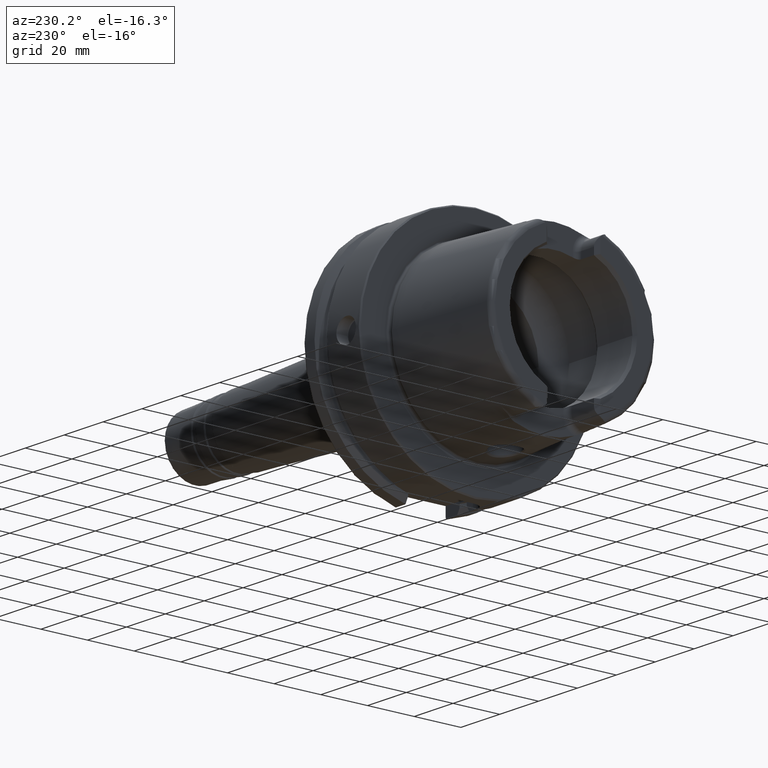
[diagram: clean part render]
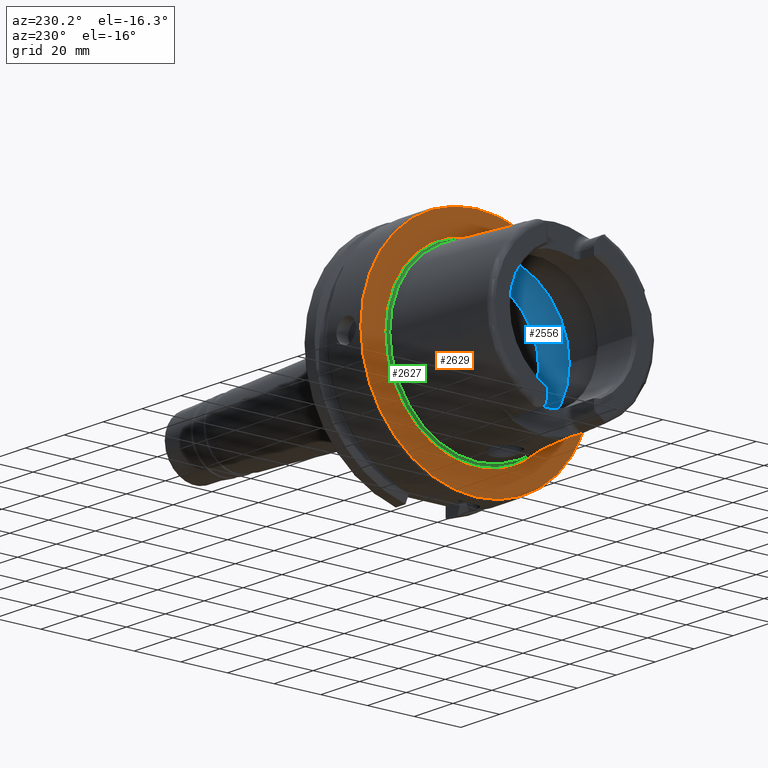
[diagram: same view with three faces highlighted in distinct colors, each labeled with its STEP entity id]
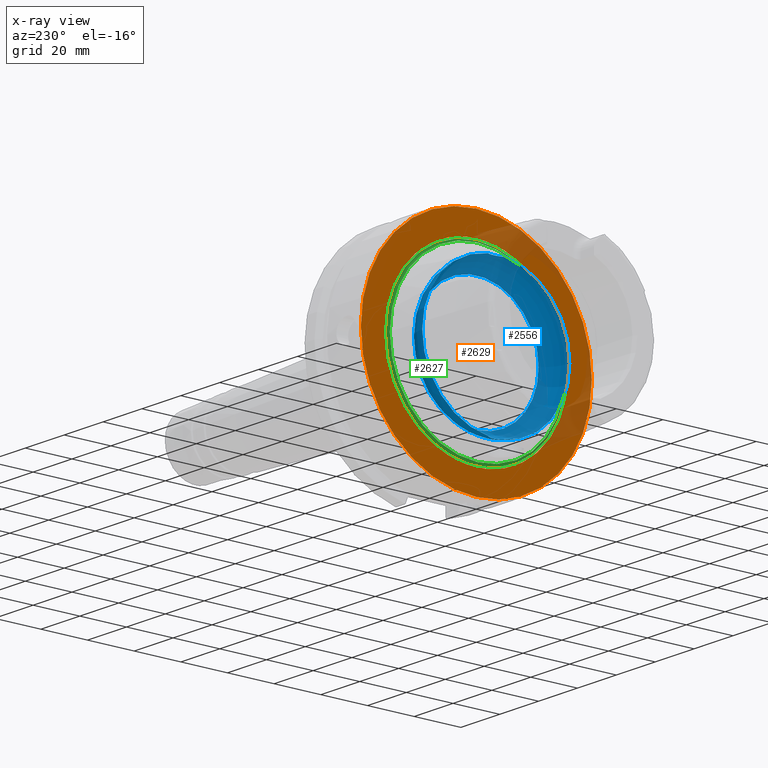
[diagram: x-ray of the same camera — body ghosted, the three highlighted faces saturated]
A machine part, auxiliary view with three faces highlighted in distinct colors.
The next image is the same camera in x-ray (body ghosted, the three faces saturated) — at least one of them is partly hidden behind the body in this view.
Their STEP definitions:

[orange] entity #2629 — the highlighted planar face has unit normal (-1, 0, 0).
#127=FACE_BOUND('',#697,.T.);
#163=PLANE('',#3005);
#552=FACE_OUTER_BOUND('',#696,.T.);
#696=EDGE_LOOP('',(#2419,#2420));
#697=EDGE_LOOP('',(#2421,#2422));
#922=CIRCLE('',#3003,39.2747800249997);
#923=CIRCLE('',#3004,39.2747800249997);
#924=CIRCLE('',#3006,49.5);
#925=CIRCLE('',#3007,49.5);
#1217=VERTEX_POINT('',#5559);
#1218=VERTEX_POINT('',#5561);
#1219=VERTEX_POINT('',#5565);
#1220=VERTEX_POINT('',#5566);
#1624=EDGE_CURVE('',#1218,#1217,#922,.T.);
#1625=EDGE_CURVE('',#1217,#1218,#923,.T.);
#1626=EDGE_CURVE('',#1219,#1220,#924,.T.);
#1627=EDGE_CURVE('',#1220,#1219,#925,.T.);
#2419=ORIENTED_EDGE('',*,*,#1626,.F.);
#2420=ORIENTED_EDGE('',*,*,#1627,.F.);
#2421=ORIENTED_EDGE('',*,*,#1624,.T.);
#2422=ORIENTED_EDGE('',*,*,#1625,.T.);
#2629=ADVANCED_FACE('',(#552,#127),#163,.T.);
#3003=AXIS2_PLACEMENT_3D('',#5562,#3825,#3826);
#3004=AXIS2_PLACEMENT_3D('',#5563,#3827,#3828);
#3005=AXIS2_PLACEMENT_3D('',#5564,#3829,#3830);
#3006=AXIS2_PLACEMENT_3D('',#5567,#3831,#3832);
#3007=AXIS2_PLACEMENT_3D('',#5568,#3833,#3834);
#3825=DIRECTION('center_axis',(1.,0.,0.));
#3826=DIRECTION('ref_axis',(0.,0.,-1.));
#3827=DIRECTION('center_axis',(1.,0.,0.));
#3828=DIRECTION('ref_axis',(0.,0.,-1.));
#3829=DIRECTION('center_axis',(-1.,0.,0.));
#3830=DIRECTION('ref_axis',(0.,0.,1.));
#3831=DIRECTION('center_axis',(1.,0.,0.));
#3832=DIRECTION('ref_axis',(0.,0.,-1.));
#3833=DIRECTION('center_axis',(1.,0.,0.));
#3834=DIRECTION('ref_axis',(0.,0.,-1.));
#5559=CARTESIAN_POINT('',(-1.11889664200504E-15,-39.2747800249997,-4.80977336448322E-15));
#5561=CARTESIAN_POINT('',(0.,39.2747800249997,0.));
#5562=CARTESIAN_POINT('Origin',(0.,0.,0.));
#5563=CARTESIAN_POINT('Origin',(0.,0.,0.));
#5564=CARTESIAN_POINT('Origin',(0.,49.5,0.));
#5565=CARTESIAN_POINT('',(0.,49.5,0.));
#5566=CARTESIAN_POINT('',(1.2490009027033E-15,-49.5,-6.0620016557794E-15));
#5567=CARTESIAN_POINT('Origin',(0.,0.,0.));
#5568=CARTESIAN_POINT('Origin',(0.,0.,0.));

[blue] entity #2556 — the highlighted toroidal blend (fillet) surface has major radius 19.5 mm and minor (blend) radius 12 mm.
#49=B_SPLINE_CURVE_WITH_KNOTS('',3,(#4620,#4621,#4622,#4623,#4624,#4625,
#4626,#4627,#4628,#4629),.UNSPECIFIED.,.F.,.F.,(4,2,2,2,4),(-0.704306975532235,
-0.563368317577754,-0.446049375641081,-0.386534165165624,-0.352317223799877),
 .UNSPECIFIED.);
#51=B_SPLINE_CURVE_WITH_KNOTS('',3,(#4662,#4663,#4664,#4665,#4666,#4667,
#4668,#4669,#4670,#4671),.UNSPECIFIED.,.F.,.F.,(4,2,2,2,4),(-0.352317223799877,
-0.339935606805379,-0.289031750490702,-0.208814277120691,0.),
 .UNSPECIFIED.);
#54=B_SPLINE_CURVE_WITH_KNOTS('',3,(#4812,#4813,#4814,#4815,#4816,#4817,
#4818,#4819,#4820,#4821),.UNSPECIFIED.,.F.,.F.,(4,2,2,2,4),(-0.704306975532881,
-0.563368317578124,-0.446049375641235,-0.386534165165663,-0.352317223799864),
 .UNSPECIFIED.);
#56=B_SPLINE_CURVE_WITH_KNOTS('',3,(#4854,#4855,#4856,#4857,#4858,#4859,
#4860,#4861,#4862,#4863),.UNSPECIFIED.,.F.,.F.,(4,2,2,2,4),(-0.352317223799864,
-0.339935606805357,-0.289031750490679,-0.208814277120681,0.),
 .UNSPECIFIED.);
#479=FACE_OUTER_BOUND('',#619,.T.);
#619=EDGE_LOOP('',(#1996,#1997,#1998,#1999,#2000,#2001,#2002,#2003,#2004,
#2005,#2006,#2007));
#825=CIRCLE('',#2833,31.5);
#829=CIRCLE('',#2837,31.5);
#830=CIRCLE('',#2838,31.5);
#831=CIRCLE('',#2840,26.5);
#832=CIRCLE('',#2841,26.5);
#833=CIRCLE('',#2842,26.5);
#834=CIRCLE('',#2843,12.);
#1086=VERTEX_POINT('',#4617);
#1087=VERTEX_POINT('',#4619);
#1088=VERTEX_POINT('',#4630);
#1091=VERTEX_POINT('',#4810);
#1092=VERTEX_POINT('',#4811);
#1093=VERTEX_POINT('',#4822);
#1095=VERTEX_POINT('',#4868);
#1099=VERTEX_POINT('',#4880);
#1100=VERTEX_POINT('',#4881);
#1101=VERTEX_POINT('',#4883);
#1418=EDGE_CURVE('',#1087,#1086,#49,.T.);
#1420=EDGE_CURVE('',#1086,#1088,#51,.T.);
#1424=EDGE_CURVE('',#1091,#1092,#54,.T.);
#1426=EDGE_CURVE('',#1092,#1093,#56,.T.);
#1429=EDGE_CURVE('',#1095,#1091,#825,.T.);
#1434=EDGE_CURVE('',#1088,#1095,#829,.T.);
#1435=EDGE_CURVE('',#1093,#1087,#830,.T.);
#1436=EDGE_CURVE('',#1099,#1100,#831,.T.);
#1437=EDGE_CURVE('',#1101,#1099,#832,.T.);
#1438=EDGE_CURVE('',#1100,#1101,#833,.T.);
#1439=EDGE_CURVE('',#1100,#1086,#834,.T.);
#1996=ORIENTED_EDGE('',*,*,#1436,.F.);
#1997=ORIENTED_EDGE('',*,*,#1437,.F.);
#1998=ORIENTED_EDGE('',*,*,#1438,.F.);
#1999=ORIENTED_EDGE('',*,*,#1439,.T.);
#2000=ORIENTED_EDGE('',*,*,#1420,.T.);
#2001=ORIENTED_EDGE('',*,*,#1434,.T.);
#2002=ORIENTED_EDGE('',*,*,#1429,.T.);
#2003=ORIENTED_EDGE('',*,*,#1424,.T.);
#2004=ORIENTED_EDGE('',*,*,#1426,.T.);
#2005=ORIENTED_EDGE('',*,*,#1435,.T.);
#2006=ORIENTED_EDGE('',*,*,#1418,.T.);
#2007=ORIENTED_EDGE('',*,*,#1439,.F.);
#2483=TOROIDAL_SURFACE('',#2839,19.5,12.);
#2556=ADVANCED_FACE('',(#479),#2483,.F.);
#2833=AXIS2_PLACEMENT_3D('',#4869,#3427,#3428);
#2837=AXIS2_PLACEMENT_3D('',#4877,#3436,#3437);
#2838=AXIS2_PLACEMENT_3D('',#4878,#3438,#3439);
#2839=AXIS2_PLACEMENT_3D('',#4879,#3440,#3441);
#2840=AXIS2_PLACEMENT_3D('',#4882,#3442,#3443);
#2841=AXIS2_PLACEMENT_3D('',#4884,#3444,#3445);
#2842=AXIS2_PLACEMENT_3D('',#4885,#3446,#3447);
#2843=AXIS2_PLACEMENT_3D('',#4886,#3448,#3449);
#3427=DIRECTION('center_axis',(-1.,0.,0.));
#3428=DIRECTION('ref_axis',(0.,0.,1.));
#3436=DIRECTION('center_axis',(-1.,0.,0.));
#3437=DIRECTION('ref_axis',(0.,0.,1.));
#3438=DIRECTION('center_axis',(-1.,0.,0.));
#3439=DIRECTION('ref_axis',(0.,0.,1.));
#3440=DIRECTION('center_axis',(-1.,0.,0.));
#3441=DIRECTION('ref_axis',(0.,0.,1.));
#3442=DIRECTION('center_axis',(-1.,0.,0.));
#3443=DIRECTION('ref_axis',(0.,0.,1.));
#3444=DIRECTION('center_axis',(-1.,0.,0.));
#3445=DIRECTION('ref_axis',(0.,0.,1.));
#3446=DIRECTION('center_axis',(-1.,0.,0.));
#3447=DIRECTION('ref_axis',(0.,0.,1.));
#3448=DIRECTION('center_axis',(0.,1.,-1.22464679914735E-16));
#3449=DIRECTION('ref_axis',(0.,-1.22464679914735E-16,-1.));
#4617=CARTESIAN_POINT('',(-9.,7.31685969699336E-16,-31.4582607431014));
#4619=CARTESIAN_POINT('',(-10.,3.31662479035542,-31.3249102153542));
#4620=CARTESIAN_POINT('Ctrl Pts',(-10.,3.31662479035541,-31.3249102153542));
#4621=CARTESIAN_POINT('Ctrl Pts',(-9.74127936765642,2.9265887617158,-31.3662065240371));
#4622=CARTESIAN_POINT('Ctrl Pts',(-9.52862762836098,2.50688318043554,-31.3949925235713));
#4623=CARTESIAN_POINT('Ctrl Pts',(-9.23240476385999,1.69927856892452,-31.4324255053116));
#4624=CARTESIAN_POINT('Ctrl Pts',(-9.13392344910017,1.31988974241601,-31.4435429781858));
#4625=CARTESIAN_POINT('Ctrl Pts',(-9.04220079429722,0.737558982965052,-31.4537190708018));
#4626=CARTESIAN_POINT('Ctrl Pts',(-9.02106779489129,0.540134132990375,-31.4559959808551));
#4627=CARTESIAN_POINT('Ctrl Pts',(-9.00325309475839,0.228126507331767,-31.4579131546092));
#4628=CARTESIAN_POINT('Ctrl Pts',(-9.,0.114070256385601,-31.4582607431014));
#4629=CARTESIAN_POINT('Ctrl Pts',(-9.,6.93889390390723E-16,-31.4582607431014));
#4630=CARTESIAN_POINT('',(-10.,-3.31662479035542,-31.3249102153542));
#4662=CARTESIAN_POINT('Ctrl Pts',(-9.,7.01335490450834E-16,-31.4582607431014));
#4663=CARTESIAN_POINT('Ctrl Pts',(-9.,-0.0412770448981316,-31.4582607431014));
#4664=CARTESIAN_POINT('Ctrl Pts',(-9.0004259501075,-0.0825559236689198,
-31.4582151361457));
#4665=CARTESIAN_POINT('Ctrl Pts',(-9.00478075477959,-0.293516919658797,
-31.4577484235034));
#4666=CARTESIAN_POINT('Ctrl Pts',(-9.01548241237086,-0.462981091842713,
-31.4566045938877));
#4667=CARTESIAN_POINT('Ctrl Pts',(-9.06151123201634,-0.897706518793593,
-31.4515940123075));
#4668=CARTESIAN_POINT('Ctrl Pts',(-9.10742242341762,-1.16146830462694,-31.4465573898449));
#4669=CARTESIAN_POINT('Ctrl Pts',(-9.33560100291262,-2.09736419662528,-31.4200720324784));
#4670=CARTESIAN_POINT('Ctrl Pts',(-9.61673416003176,-2.73882979665765,-31.3860861033828));
#4671=CARTESIAN_POINT('Ctrl Pts',(-10.,-3.31662479035541,-31.3249102153542));
#4810=CARTESIAN_POINT('',(-10.,-3.31662479035542,31.3249102153542));
#4811=CARTESIAN_POINT('',(-8.99999999999999,7.75054056598756E-16,31.4582607431014));
#4812=CARTESIAN_POINT('Ctrl Pts',(-9.99999999999999,-3.31662479035541,31.3249102153542));
#4813=CARTESIAN_POINT('Ctrl Pts',(-9.74127936765643,-2.92658876171583,31.3662065240371));
#4814=CARTESIAN_POINT('Ctrl Pts',(-9.52862762836099,-2.50688318043561,31.3949925235713));
#4815=CARTESIAN_POINT('Ctrl Pts',(-9.23240476385996,-1.69927856892447,31.4324255053116));
#4816=CARTESIAN_POINT('Ctrl Pts',(-9.13392344910015,-1.31988974241592,31.4435429781858));
#4817=CARTESIAN_POINT('Ctrl Pts',(-9.04220079429722,-0.737558982965067,
31.4537190708018));
#4818=CARTESIAN_POINT('Ctrl Pts',(-9.02106779489129,-0.540134132990415,
31.4559959808551));
#4819=CARTESIAN_POINT('Ctrl Pts',(-9.00325309475839,-0.228126507331796,
31.4579131546092));
#4820=CARTESIAN_POINT('Ctrl Pts',(-8.99999999999999,-0.114070256385655,
31.4582607431014));
#4821=CARTESIAN_POINT('Ctrl Pts',(-8.99999999999999,7.97972798949331E-16,
31.4582607431014));
#4822=CARTESIAN_POINT('',(-10.,3.31662479035542,31.3249102153542));
#4854=CARTESIAN_POINT('Ctrl Pts',(-8.99999999999999,8.16547887892294E-16,
31.4582607431014));
#4855=CARTESIAN_POINT('Ctrl Pts',(-8.99999999999999,0.0412770448981195,
31.4582607431014));
#4856=CARTESIAN_POINT('Ctrl Pts',(-9.00042595010749,0.0825559236689046,
31.4582151361457));
#4857=CARTESIAN_POINT('Ctrl Pts',(-9.00478075477959,0.293516919658727,31.4577484235034));
#4858=CARTESIAN_POINT('Ctrl Pts',(-9.01548241237085,0.462981091842669,31.4566045938877));
#4859=CARTESIAN_POINT('Ctrl Pts',(-9.06151123201633,0.897706518793561,31.4515940123075));
#4860=CARTESIAN_POINT('Ctrl Pts',(-9.1074224234176,1.16146830462691,31.4465573898449));
#4861=CARTESIAN_POINT('Ctrl Pts',(-9.33560100291262,2.09736419662534,31.4200720324784));
#4862=CARTESIAN_POINT('Ctrl Pts',(-9.61673416003176,2.73882979665767,31.3860861033828));
#4863=CARTESIAN_POINT('Ctrl Pts',(-9.99999999999999,3.3166247903554,31.3249102153542));
#4868=CARTESIAN_POINT('',(-10.,-31.5,3.85763741731416E-15));
#4869=CARTESIAN_POINT('Origin',(-10.,0.,0.));
#4877=CARTESIAN_POINT('Origin',(-10.,0.,0.));
#4878=CARTESIAN_POINT('Origin',(-10.,0.,0.));
#4879=CARTESIAN_POINT('Origin',(-10.,0.,0.));
#4880=CARTESIAN_POINT('',(-0.253205655191035,26.5,0.));
#4881=CARTESIAN_POINT('',(-0.253205655191033,-3.24531401774049E-15,-26.5));
#4882=CARTESIAN_POINT('Origin',(-0.253205655191033,0.,0.));
#4883=CARTESIAN_POINT('',(-0.253205655191033,-26.5,3.24531401774049E-15));
#4884=CARTESIAN_POINT('Origin',(-0.253205655191033,0.,0.));
#4885=CARTESIAN_POINT('Origin',(-0.253205655191033,0.,0.));
#4886=CARTESIAN_POINT('Origin',(-10.,-2.38806125833734E-15,-19.5));

[green] entity #2627 — the highlighted toroidal blend (fillet) surface has major radius 38.5073 mm and minor (blend) radius 0.8 mm.
#550=FACE_OUTER_BOUND('',#694,.T.);
#694=EDGE_LOOP('',(#2404,#2405,#2406,#2407,#2408,#2409,#2410,#2411));
#915=CIRCLE('',#2995,37.7073016032064);
#916=CIRCLE('',#2996,0.8);
#917=CIRCLE('',#2997,38.6186400839745);
#918=CIRCLE('',#2998,38.6186400839745);
#919=CIRCLE('',#2999,38.6186400839745);
#920=CIRCLE('',#3000,37.7073016032064);
#921=CIRCLE('',#3001,37.7073016032064);
#1211=VERTEX_POINT('',#5545);
#1212=VERTEX_POINT('',#5546);
#1213=VERTEX_POINT('',#5548);
#1214=VERTEX_POINT('',#5550);
#1215=VERTEX_POINT('',#5552);
#1216=VERTEX_POINT('',#5555);
#1616=EDGE_CURVE('',#1211,#1212,#915,.T.);
#1617=EDGE_CURVE('',#1212,#1213,#916,.T.);
#1618=EDGE_CURVE('',#1214,#1213,#917,.T.);
#1619=EDGE_CURVE('',#1215,#1214,#918,.T.);
#1620=EDGE_CURVE('',#1213,#1215,#919,.T.);
#1621=EDGE_CURVE('',#1212,#1216,#920,.T.);
#1622=EDGE_CURVE('',#1216,#1211,#921,.T.);
#2404=ORIENTED_EDGE('',*,*,#1616,.T.);
#2405=ORIENTED_EDGE('',*,*,#1617,.T.);
#2406=ORIENTED_EDGE('',*,*,#1618,.F.);
#2407=ORIENTED_EDGE('',*,*,#1619,.F.);
#2408=ORIENTED_EDGE('',*,*,#1620,.F.);
#2409=ORIENTED_EDGE('',*,*,#1617,.F.);
#2410=ORIENTED_EDGE('',*,*,#1621,.T.);
#2411=ORIENTED_EDGE('',*,*,#1622,.T.);
#2503=TOROIDAL_SURFACE('',#2994,38.5073016032064,0.8);
#2627=ADVANCED_FACE('',(#550),#2503,.F.);
#2994=AXIS2_PLACEMENT_3D('',#5544,#3806,#3807);
#2995=AXIS2_PLACEMENT_3D('',#5547,#3808,#3809);
#2996=AXIS2_PLACEMENT_3D('',#5549,#3810,#3811);
#2997=AXIS2_PLACEMENT_3D('',#5551,#3812,#3813);
#2998=AXIS2_PLACEMENT_3D('',#5553,#3814,#3815);
#2999=AXIS2_PLACEMENT_3D('',#5554,#3816,#3817);
#3000=AXIS2_PLACEMENT_3D('',#5556,#3818,#3819);
#3001=AXIS2_PLACEMENT_3D('',#5557,#3820,#3821);
#3806=DIRECTION('center_axis',(1.,0.,0.));
#3807=DIRECTION('ref_axis',(0.,0.,-1.));
#3808=DIRECTION('center_axis',(1.,0.,0.));
#3809=DIRECTION('ref_axis',(0.,0.,-1.));
#3810=DIRECTION('center_axis',(0.,-1.,-1.22464679914735E-16));
#3811=DIRECTION('ref_axis',(0.,-1.22464679914735E-16,1.));
#3812=DIRECTION('center_axis',(1.,0.,0.));
#3813=DIRECTION('ref_axis',(0.,0.,-1.));
#3814=DIRECTION('center_axis',(1.,0.,0.));
#3815=DIRECTION('ref_axis',(0.,0.,-1.));
#3816=DIRECTION('center_axis',(1.,0.,0.));
#3817=DIRECTION('ref_axis',(0.,0.,-1.));
#3818=DIRECTION('center_axis',(1.,0.,0.));
#3819=DIRECTION('ref_axis',(0.,0.,-1.));
#3820=DIRECTION('center_axis',(1.,0.,0.));
#3821=DIRECTION('ref_axis',(0.,0.,-1.));
#5544=CARTESIAN_POINT('Origin',(-0.7,0.,0.));
#5545=CARTESIAN_POINT('',(-0.7,37.7073016032064,0.));
#5546=CARTESIAN_POINT('',(-0.7,-4.61781262128506E-15,37.7073016032064));
#5547=CARTESIAN_POINT('Origin',(-0.7,0.,0.));
#5548=CARTESIAN_POINT('',(0.0922144549932559,-4.7294193966263E-15,38.6186400839745));
#5549=CARTESIAN_POINT('Origin',(-0.7,-4.71578436521685E-15,38.5073016032064));
#5550=CARTESIAN_POINT('',(0.0922144549932559,38.6186400839745,0.));
#5551=CARTESIAN_POINT('Origin',(0.0922144549932559,0.,0.));
#5552=CARTESIAN_POINT('',(0.0922144549932577,-38.6186400839745,-4.7294193966263E-15));
#5553=CARTESIAN_POINT('Origin',(0.0922144549932559,0.,0.));
#5554=CARTESIAN_POINT('Origin',(0.0922144549932559,0.,0.));
#5555=CARTESIAN_POINT('',(-0.7,-37.7073016032064,-4.61781262128506E-15));
#5556=CARTESIAN_POINT('Origin',(-0.7,0.,0.));
#5557=CARTESIAN_POINT('Origin',(-0.7,0.,0.));